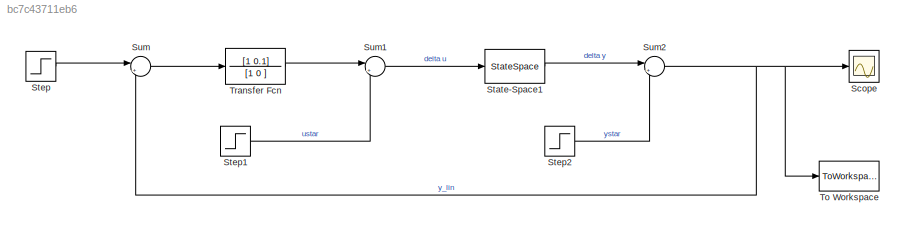
MODEL slx_bc7c43711eb6
KIND model
CONFIG AbsTol = auto
CONFIG EnableMultiTasking = off
CONFIG FixedStep = auto
CONFIG MaxStep = auto
CONFIG MinStep = auto
CONFIG RelTol = 1e-3
CONFIG SampleTimeConstraint = Unconstrained
CONFIG Solver = VariableStepAuto
CONFIG SolverName = VariableStepAuto
CONFIG StartTime = 0.0
CONFIG StopTime = 400
BLOCK [Scope] Scope
  Floating = off
  NumInputPorts = 1
  Ports = [1]
  ScopeSpecificationString = Simulink.scopes.TimeScopeBlockCfg('CurrentConfiguration', extmgr.ConfigurationSet(extmgr.Configuration('Core','General UI',true),extmgr.Configuration('Core','Source UI',true),extmgr.Configuration('Sources','WiredSimulink',true),extmgr.Configuration('Visuals','Time Domain',true,'SerializedDisplays',{struct('MinYLimReal','-1.14608','MaxYLimReal','10.31474','YLabelReal','','MinYLimMag','0.00000','Max...<+1397ch>
BLOCK [StateSpace] State-Space1
  A = sys.A
  B = sys.B
  C = sys.C
  D = sys.D
  InitialCondition = [0;0;0;0] - xstar
  Ports = [1, 1]
BLOCK [Step] Step
  After = r
  SampleTime = 0
  Time = 0
BLOCK [Step] Step1
  After = ustar
  SampleTime = 0
  Time = 0
BLOCK [Step] Step2
  After = ystar
  SampleTime = 0
  Time = 0
BLOCK [Sum] Sum
  IconShape = round
  InputSameDT = off
  Inputs = |+-
  OutDataTypeStr = Inherit: Inherit via internal rule
  Ports = [2, 1]
  SaturateOnIntegerOverflow = off
BLOCK [Sum] Sum1
  IconShape = round
  InputSameDT = off
  Inputs = |+-
  OutDataTypeStr = Inherit: Inherit via internal rule
  Ports = [2, 1]
  SaturateOnIntegerOverflow = off
BLOCK [Sum] Sum2
  IconShape = round
  InputSameDT = off
  Inputs = |++
  OutDataTypeStr = Inherit: Inherit via internal rule
  Ports = [2, 1]
  SaturateOnIntegerOverflow = off
BLOCK [ToWorkspace] To Workspace
  FixptAsFi = on
  MaxDataPoints = inf
  Ports = [1]
  SampleTime = -1
  SaveFormat = Timeseries
  VariableName = y1
BLOCK [TransferFcn] Transfer Fcn
  Denominator = [1 0 ]
  Numerator = [1 0.1]
LINE State-Space1:1 -> Sum2:1
LINE Step1:1 -> Sum1:2
LINE Step2:1 -> Sum2:2
LINE Step:1 -> Sum:1
LINE Sum1:1 -> State-Space1:1
NET Sum2:1 -> Scope:1, Sum:2, To Workspace:1
LINE Sum:1 -> Transfer Fcn:1
LINE Transfer Fcn:1 -> Sum1:1
note: NET lines group one-source signal fan-out (src -> all destinations, sorted); 1:1 wires keep LINE
